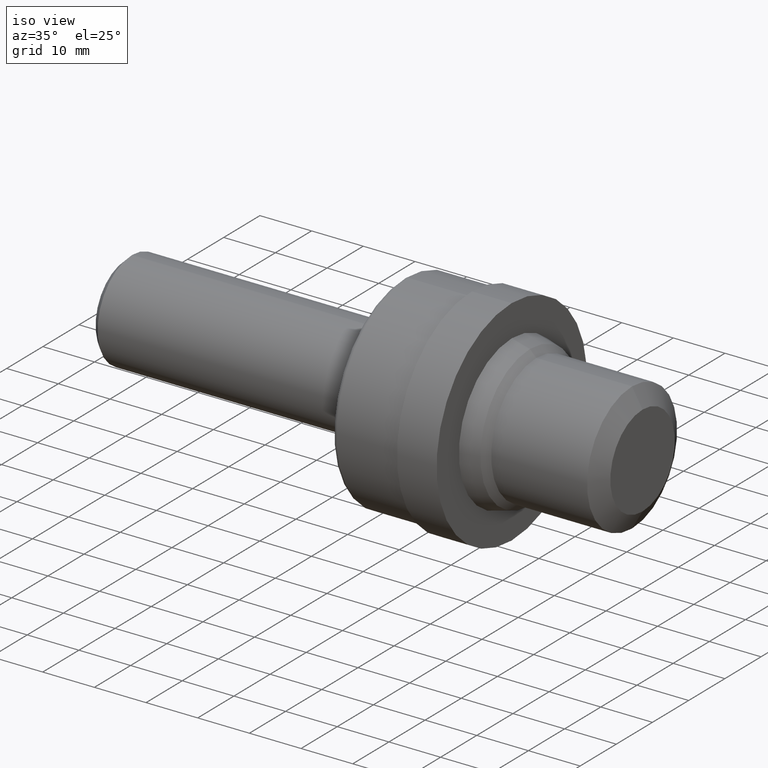
[diagram: clean part render]
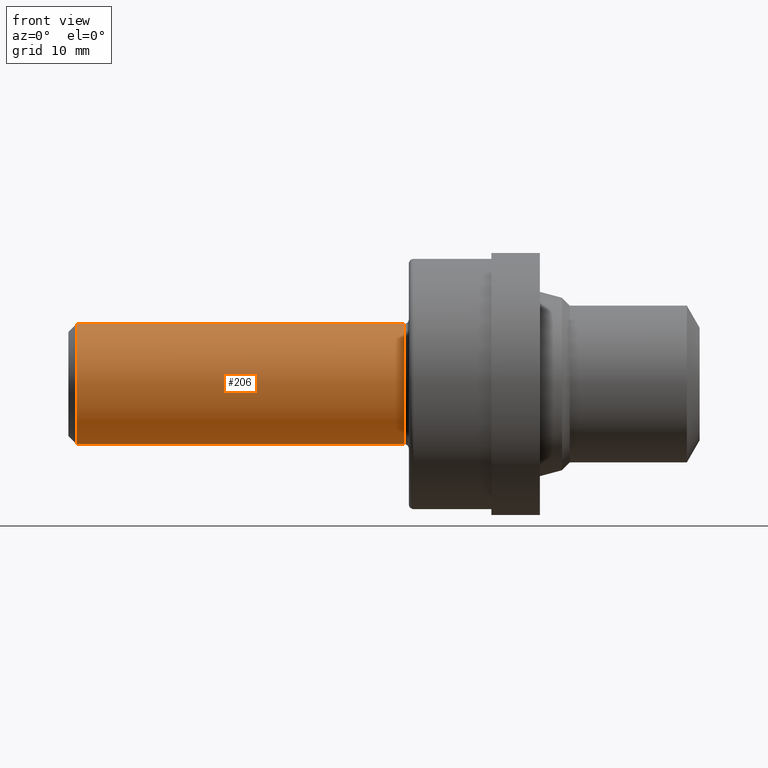
[diagram: tour spotlight — one face highlighted and labeled with its STEP entity id]
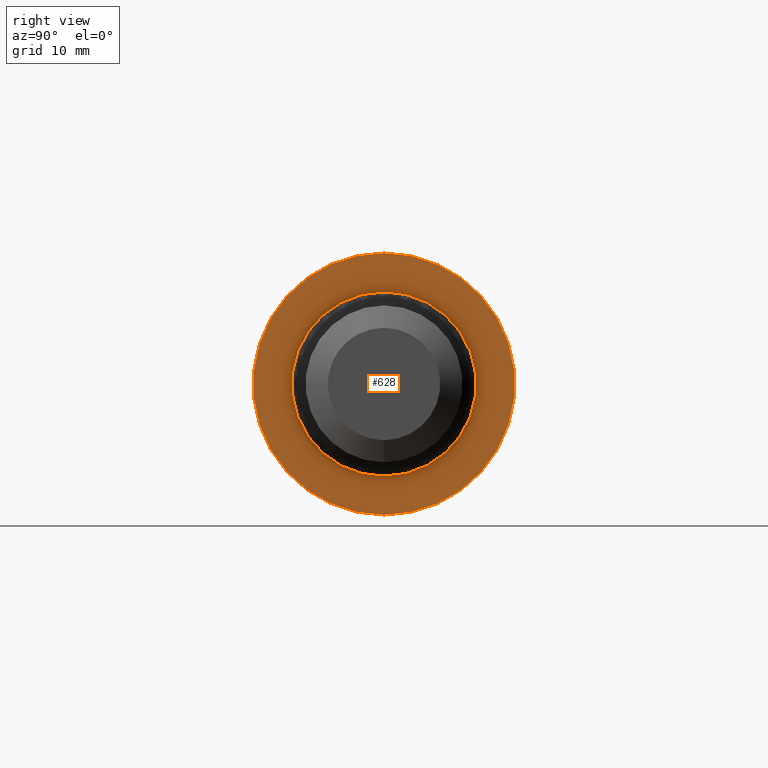
[diagram: tour spotlight — one face highlighted and labeled with its STEP entity id]
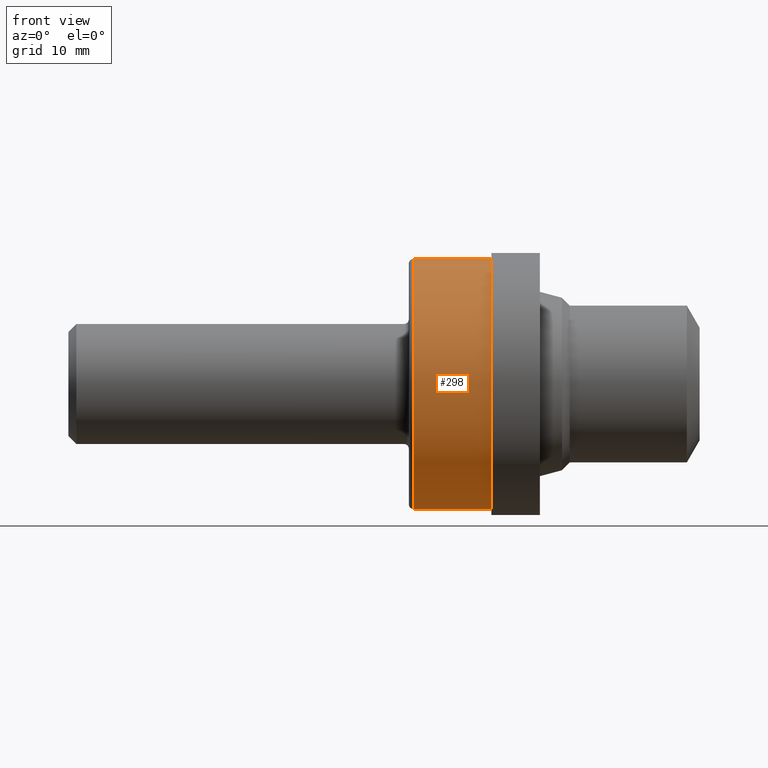
[diagram: tour spotlight — one face highlighted and labeled with its STEP entity id]
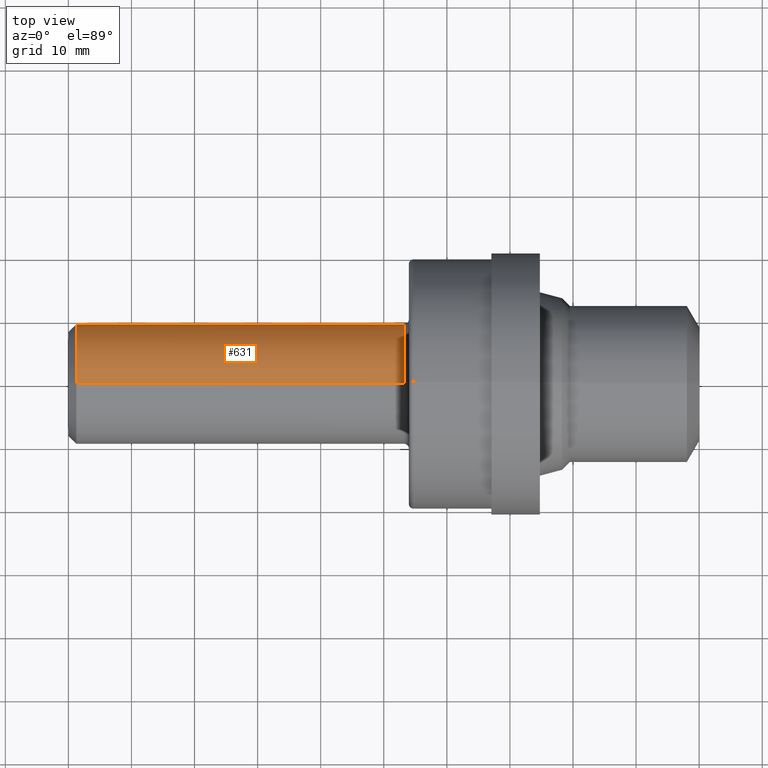
[diagram: tour spotlight — one face highlighted and labeled with its STEP entity id]
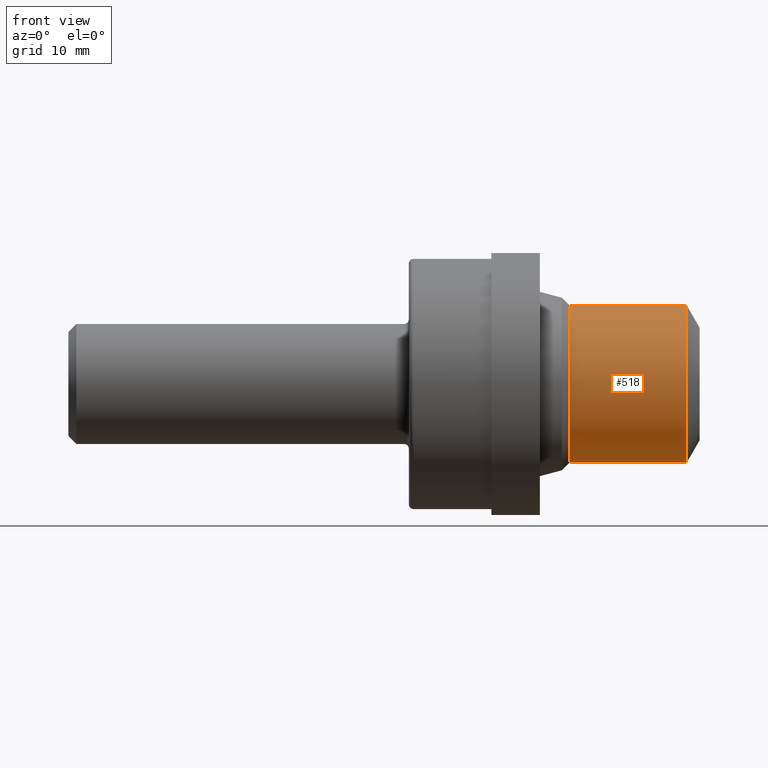
[diagram: tour spotlight — one face highlighted and labeled with its STEP entity id]
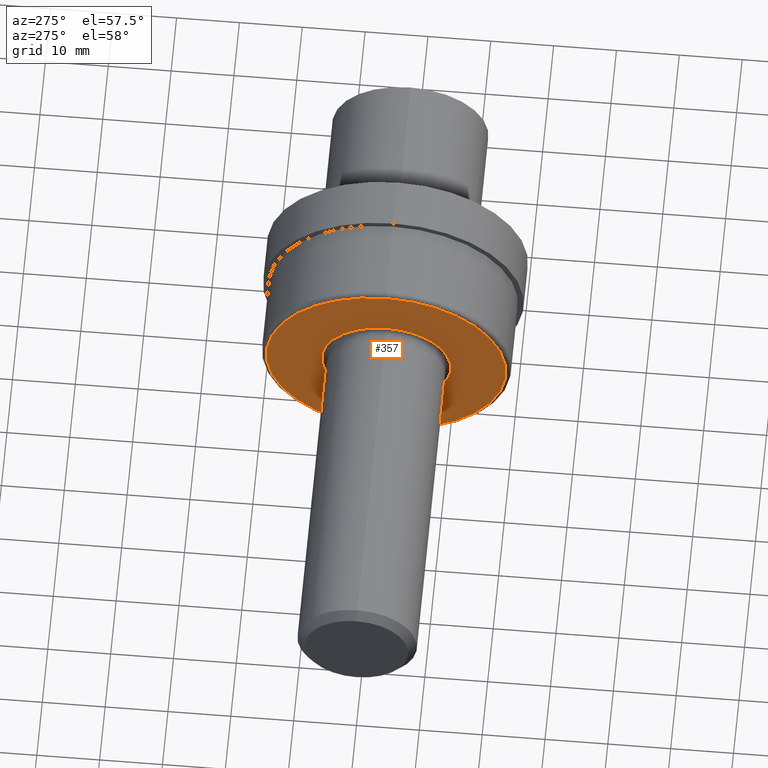
[diagram: tour spotlight — one face highlighted and labeled with its STEP entity id]
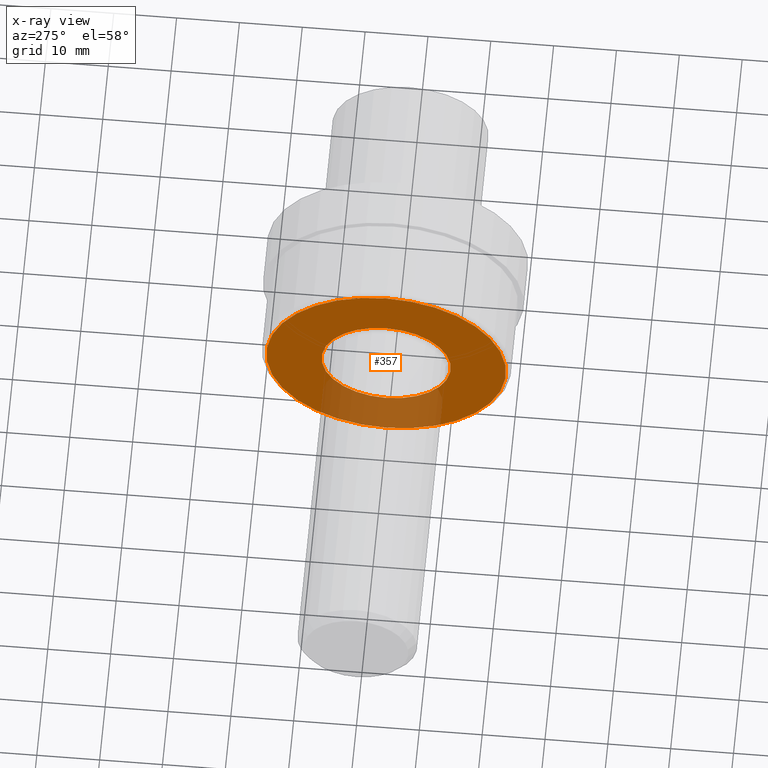
[diagram: x-ray of the same camera — body ghosted, this tour face saturated]
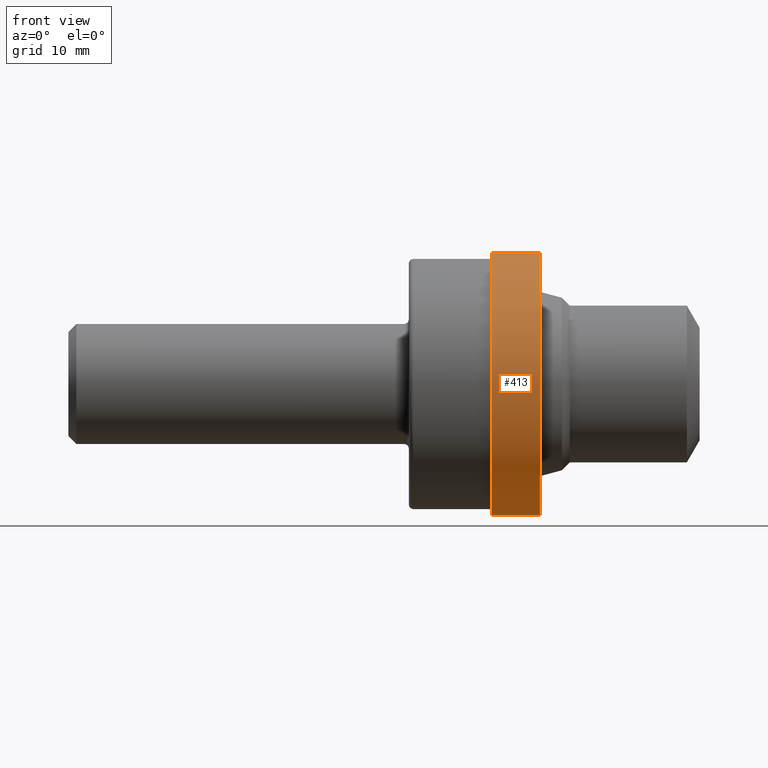
[diagram: tour spotlight — one face highlighted and labeled with its STEP entity id]
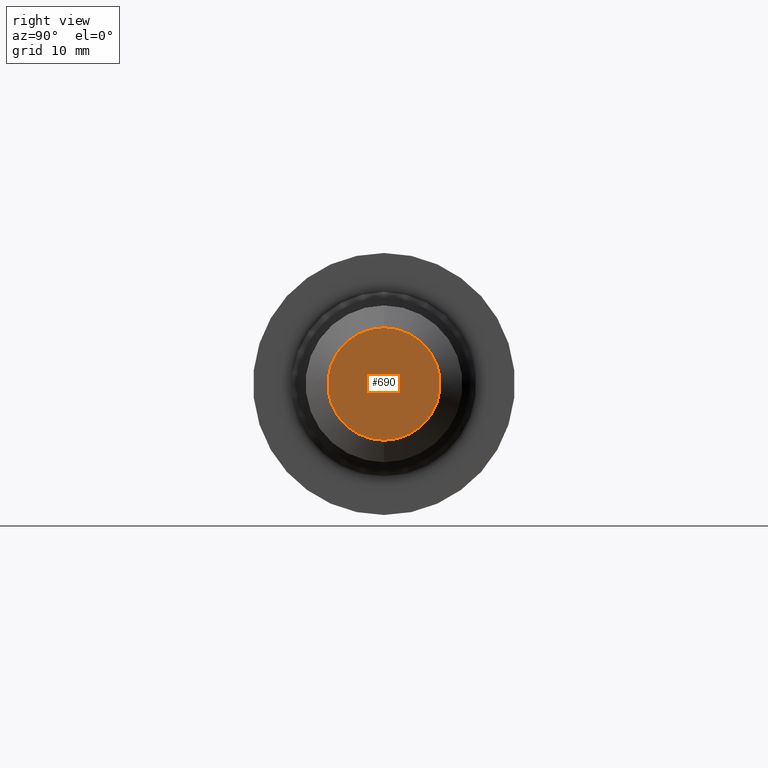
[diagram: tour spotlight — one face highlighted and labeled with its STEP entity id]
A machine part: a face-by-face anatomy tour. The part has 25 B-rep faces; the first image is the clean iso view, then the 8 largest visible faces are spotlighted one at a time (largest first), each with its STEP entity span.

Face 1 — front view, entity #206. In plain terms, the highlighted cylindrical surface (partial cylindrical patch) has radius 9.5212 mm, axis along (-1, -0, -0).
Definition (entity closure, byte-faithful):
#6 = ORIENTED_EDGE ( 'NONE', *, *, #584, .F. ) ;
#8 = DIRECTION ( 'NONE',  ( -1.000000000000000000, -0.0000000000000000000, -0.0000000000000000000 ) ) ;
#59 = CARTESIAN_POINT ( 'NONE',  ( 0.05000000000000000278, 0.0000000000000000000, -0.3748500000000000165 ) ) ;
#66 = AXIS2_PLACEMENT_3D ( 'NONE', #299, #682, #618 ) ;
#82 = CARTESIAN_POINT ( 'NONE',  ( 0.05000000000000000278, 0.0000000000000000000, 0.0000000000000000000 ) ) ;
#97 = VECTOR ( 'NONE', #521, 39.37007874015748143 ) ;
#101 = CARTESIAN_POINT ( 'NONE',  ( 2.094999999999999751, 0.0000000000000000000, 0.3748500000000004606 ) ) ;
#110 = DIRECTION ( 'NONE',  ( 0.0000000000000000000, 0.0000000000000000000, 1.000000000000000000 ) ) ;
#120 = VERTEX_POINT ( 'NONE', #59 ) ;
#174 = EDGE_CURVE ( 'NONE', #260, #120, #230, .T. ) ;
#182 = VERTEX_POINT ( 'NONE', #101 ) ;
#195 = CYLINDRICAL_SURFACE ( 'NONE', #66, 0.3748500000000002386 ) ;
#203 = CARTESIAN_POINT ( 'NONE',  ( 0.0000000000000000000, 4.590588526603856213E-17, -0.3748500000000002386 ) ) ;
#206 = ADVANCED_FACE ( 'NONE', ( #344 ), #195, .T. ) ;
#219 = LINE ( 'NONE', #389, #233 ) ;
#228 = CARTESIAN_POINT ( 'NONE',  ( 0.05000000000000000278, 4.590588526603853748E-17, 0.3748500000000000165 ) ) ;
#230 = LINE ( 'NONE', #203, #97 ) ;
#233 = VECTOR ( 'NONE', #234, 39.37007874015748143 ) ;
#234 = DIRECTION ( 'NONE',  ( -1.000000000000000000, -0.0000000000000000000, -0.0000000000000000000 ) ) ;
#254 = EDGE_CURVE ( 'NONE', #260, #182, #582, .T. ) ;
#260 = VERTEX_POINT ( 'NONE', #581 ) ;
#271 = AXIS2_PLACEMENT_3D ( 'NONE', #362, #8, #110 ) ;
#273 = ORIENTED_EDGE ( 'NONE', *, *, #360, .T. ) ;
#280 = DIRECTION ( 'NONE',  ( -1.000000000000000000, -0.0000000000000000000, -0.0000000000000000000 ) ) ;
#284 = DIRECTION ( 'NONE',  ( 0.0000000000000000000, 0.0000000000000000000, 1.000000000000000000 ) ) ;
#299 = CARTESIAN_POINT ( 'NONE',  ( 0.0000000000000000000, 0.0000000000000000000, 0.0000000000000000000 ) ) ;
#344 = FACE_OUTER_BOUND ( 'NONE', #458, .T. ) ;
#360 = EDGE_CURVE ( 'NONE', #182, #481, #219, .T. ) ;
#362 = CARTESIAN_POINT ( 'NONE',  ( 2.094999999999999751, 0.0000000000000000000, 0.0000000000000000000 ) ) ;
#371 = ORIENTED_EDGE ( 'NONE', *, *, #174, .F. ) ;
#389 = CARTESIAN_POINT ( 'NONE',  ( 0.0000000000000000000, 0.0000000000000000000, 0.3748500000000002386 ) ) ;
#458 = EDGE_LOOP ( 'NONE', ( #371, #665, #273, #6 ) ) ;
#462 = AXIS2_PLACEMENT_3D ( 'NONE', #82, #280, #284 ) ;
#481 = VERTEX_POINT ( 'NONE', #228 ) ;
#521 = DIRECTION ( 'NONE',  ( -1.000000000000000000, -0.0000000000000000000, -0.0000000000000000000 ) ) ;
#563 = CIRCLE ( 'NONE', #462, 0.3748500000000000165 ) ;
#581 = CARTESIAN_POINT ( 'NONE',  ( 2.094999999999999751, 4.590588526603858678E-17, -0.3748500000000003496 ) ) ;
#582 = CIRCLE ( 'NONE', #271, 0.3748500000000004606 ) ;
#584 = EDGE_CURVE ( 'NONE', #120, #481, #563, .T. ) ;
#618 = DIRECTION ( 'NONE',  ( 0.0000000000000000000, 0.0000000000000000000, 1.000000000000000000 ) ) ;
#665 = ORIENTED_EDGE ( 'NONE', *, *, #254, .T. ) ;
#682 = DIRECTION ( 'NONE',  ( -1.000000000000000000, -0.0000000000000000000, -0.0000000000000000000 ) ) ;

Face 2 — right view, entity #628. In plain terms, the highlighted planar face has unit normal (-1, 0, -0).
Definition (entity closure, byte-faithful):
#21 = EDGE_LOOP ( 'NONE', ( #46, #526 ) ) ;
#27 = ORIENTED_EDGE ( 'NONE', *, *, #505, .F. ) ;
#46 = ORIENTED_EDGE ( 'NONE', *, *, #573, .T. ) ;
#49 = CIRCLE ( 'NONE', #258, 0.5752500000000000391 ) ;
#50 = CARTESIAN_POINT ( 'NONE',  ( 2.942999999999999616, 0.0000000000000000000, 0.8175000000000000044 ) ) ;
#69 = ORIENTED_EDGE ( 'NONE', *, *, #361, .F. ) ;
#85 = CARTESIAN_POINT ( 'NONE',  ( 2.942999999999999616, 0.0000000000000000000, 0.0000000000000000000 ) ) ;
#123 = DIRECTION ( 'NONE',  ( -1.000000000000000000, -0.0000000000000000000, -0.0000000000000000000 ) ) ;
#130 = FACE_BOUND ( 'NONE', #21, .T. ) ;
#131 = VERTEX_POINT ( 'NONE', #692 ) ;
#145 = DIRECTION ( 'NONE',  ( -1.000000000000000000, -0.0000000000000000000, -0.0000000000000000000 ) ) ;
#146 = DIRECTION ( 'NONE',  ( -0.0000000000000000000, 0.0000000000000000000, 1.000000000000000000 ) ) ;
#150 = DIRECTION ( 'NONE',  ( -1.000000000000000000, 0.0000000000000000000, -0.0000000000000000000 ) ) ;
#154 = CARTESIAN_POINT ( 'NONE',  ( 2.942999999999999616, 0.8175000000000000044, 0.0000000000000000000 ) ) ;
#188 = EDGE_CURVE ( 'NONE', #131, #231, #216, .T. ) ;
#204 = EDGE_LOOP ( 'NONE', ( #69, #27 ) ) ;
#216 = CIRCLE ( 'NONE', #649, 0.5752500000000000391 ) ;
#220 = VERTEX_POINT ( 'NONE', #50 ) ;
#221 = AXIS2_PLACEMENT_3D ( 'NONE', #541, #123, #434 ) ;
#231 = VERTEX_POINT ( 'NONE', #349 ) ;
#237 = CARTESIAN_POINT ( 'NONE',  ( 2.942999999999999616, 0.0000000000000000000, 0.0000000000000000000 ) ) ;
#258 = AXIS2_PLACEMENT_3D ( 'NONE', #85, #375, #482 ) ;
#262 = VERTEX_POINT ( 'NONE', #307 ) ;
#279 = FACE_OUTER_BOUND ( 'NONE', #204, .T. ) ;
#307 = CARTESIAN_POINT ( 'NONE',  ( 2.942999999999999616, 1.001148758302961187E-16, -0.8175000000000000044 ) ) ;
#340 = CIRCLE ( 'NONE', #221, 0.8175000000000000044 ) ;
#346 = CIRCLE ( 'NONE', #373, 0.8175000000000000044 ) ;
#349 = CARTESIAN_POINT ( 'NONE',  ( 2.942999999999999616, 0.0000000000000000000, 0.5752500000000000391 ) ) ;
#361 = EDGE_CURVE ( 'NONE', #220, #262, #346, .T. ) ;
#373 = AXIS2_PLACEMENT_3D ( 'NONE', #237, #549, #542 ) ;
#375 = DIRECTION ( 'NONE',  ( -1.000000000000000000, -0.0000000000000000000, -0.0000000000000000000 ) ) ;
#434 = DIRECTION ( 'NONE',  ( 0.0000000000000000000, 0.0000000000000000000, 1.000000000000000000 ) ) ;
#482 = DIRECTION ( 'NONE',  ( 0.0000000000000000000, 0.0000000000000000000, 1.000000000000000000 ) ) ;
#505 = EDGE_CURVE ( 'NONE', #262, #220, #340, .T. ) ;
#519 = DIRECTION ( 'NONE',  ( 0.0000000000000000000, 0.0000000000000000000, 1.000000000000000000 ) ) ;
#526 = ORIENTED_EDGE ( 'NONE', *, *, #188, .T. ) ;
#541 = CARTESIAN_POINT ( 'NONE',  ( 2.942999999999999616, 0.0000000000000000000, 0.0000000000000000000 ) ) ;
#542 = DIRECTION ( 'NONE',  ( 0.0000000000000000000, 0.0000000000000000000, 1.000000000000000000 ) ) ;
#549 = DIRECTION ( 'NONE',  ( -1.000000000000000000, -0.0000000000000000000, -0.0000000000000000000 ) ) ;
#569 = CARTESIAN_POINT ( 'NONE',  ( 2.942999999999999616, 0.0000000000000000000, 0.0000000000000000000 ) ) ;
#573 = EDGE_CURVE ( 'NONE', #231, #131, #49, .T. ) ;
#583 = PLANE ( 'NONE',  #596 ) ;
#596 = AXIS2_PLACEMENT_3D ( 'NONE', #154, #150, #146 ) ;
#628 = ADVANCED_FACE ( 'NONE', ( #279, #130 ), #583, .F. ) ;
#649 = AXIS2_PLACEMENT_3D ( 'NONE', #569, #145, #519 ) ;
#692 = CARTESIAN_POINT ( 'NONE',  ( 2.942999999999999616, 7.044780712095150057E-17, -0.5752500000000000391 ) ) ;

Face 3 — front view, entity #298. In plain terms, the highlighted cylindrical surface (partial cylindrical patch) has radius 19.8374 mm, axis along (-1, -0, -0).
Definition (entity closure, byte-faithful):
#3 = DIRECTION ( 'NONE',  ( 0.0000000000000000000, 0.0000000000000000000, 1.000000000000000000 ) ) ;
#29 = AXIS2_PLACEMENT_3D ( 'NONE', #305, #524, #3 ) ;
#40 = CARTESIAN_POINT ( 'NONE',  ( 2.154999999999999805, 0.0000000000000000000, 0.7810000000000001386 ) ) ;
#56 = CARTESIAN_POINT ( 'NONE',  ( 2.154999999999999805, 9.564491501340829556E-17, -0.7810000000000001386 ) ) ;
#61 = DIRECTION ( 'NONE',  ( -1.000000000000000000, -0.0000000000000000000, -0.0000000000000000000 ) ) ;
#62 = VERTEX_POINT ( 'NONE', #87 ) ;
#63 = VERTEX_POINT ( 'NONE', #40 ) ;
#87 = CARTESIAN_POINT ( 'NONE',  ( 2.640000000000000124, 0.0000000000000000000, 0.7810000000000001386 ) ) ;
#103 = DIRECTION ( 'NONE',  ( -1.000000000000000000, -0.0000000000000000000, -0.0000000000000000000 ) ) ;
#106 = DIRECTION ( 'NONE',  ( -1.000000000000000000, -0.0000000000000000000, -0.0000000000000000000 ) ) ;
#134 = EDGE_LOOP ( 'NONE', ( #678, #168, #202, #527 ) ) ;
#168 = ORIENTED_EDGE ( 'NONE', *, *, #654, .T. ) ;
#171 = CIRCLE ( 'NONE', #372, 0.7810000000000001386 ) ;
#179 = LINE ( 'NONE', #679, #589 ) ;
#202 = ORIENTED_EDGE ( 'NONE', *, *, #647, .T. ) ;
#278 = FACE_OUTER_BOUND ( 'NONE', #134, .T. ) ;
#292 = EDGE_CURVE ( 'NONE', #653, #63, #171, .T. ) ;
#298 = ADVANCED_FACE ( 'NONE', ( #278 ), #544, .T. ) ;
#300 = CARTESIAN_POINT ( 'NONE',  ( 0.0000000000000000000, 0.0000000000000000000, 0.7810000000000001386 ) ) ;
#305 = CARTESIAN_POINT ( 'NONE',  ( 0.0000000000000000000, 0.0000000000000000000, 0.0000000000000000000 ) ) ;
#314 = VECTOR ( 'NONE', #106, 39.37007874015748143 ) ;
#334 = LINE ( 'NONE', #300, #314 ) ;
#358 = CARTESIAN_POINT ( 'NONE',  ( 2.154999999999999805, 0.0000000000000000000, 0.0000000000000000000 ) ) ;
#372 = AXIS2_PLACEMENT_3D ( 'NONE', #358, #61, #415 ) ;
#379 = VERTEX_POINT ( 'NONE', #435 ) ;
#415 = DIRECTION ( 'NONE',  ( 0.0000000000000000000, 0.0000000000000000000, 1.000000000000000000 ) ) ;
#435 = CARTESIAN_POINT ( 'NONE',  ( 2.640000000000000124, 9.564491501340829556E-17, -0.7810000000000001386 ) ) ;
#524 = DIRECTION ( 'NONE',  ( -1.000000000000000000, -0.0000000000000000000, -0.0000000000000000000 ) ) ;
#527 = ORIENTED_EDGE ( 'NONE', *, *, #292, .F. ) ;
#544 = CYLINDRICAL_SURFACE ( 'NONE', #29, 0.7810000000000001386 ) ;
#589 = VECTOR ( 'NONE', #103, 39.37007874015748143 ) ;
#602 = CIRCLE ( 'NONE', #637, 0.7810000000000001386 ) ;
#636 = DIRECTION ( 'NONE',  ( 0.0000000000000000000, 0.0000000000000000000, 1.000000000000000000 ) ) ;
#637 = AXIS2_PLACEMENT_3D ( 'NONE', #674, #669, #636 ) ;
#647 = EDGE_CURVE ( 'NONE', #62, #63, #334, .T. ) ;
#653 = VERTEX_POINT ( 'NONE', #56 ) ;
#654 = EDGE_CURVE ( 'NONE', #379, #62, #602, .T. ) ;
#667 = EDGE_CURVE ( 'NONE', #379, #653, #179, .T. ) ;
#669 = DIRECTION ( 'NONE',  ( -1.000000000000000000, -0.0000000000000000000, -0.0000000000000000000 ) ) ;
#674 = CARTESIAN_POINT ( 'NONE',  ( 2.640000000000000124, 0.0000000000000000000, 0.0000000000000000000 ) ) ;
#678 = ORIENTED_EDGE ( 'NONE', *, *, #667, .F. ) ;
#679 = CARTESIAN_POINT ( 'NONE',  ( 0.0000000000000000000, 9.564491501340829556E-17, -0.7810000000000001386 ) ) ;

Face 4 — top view, entity #631. In plain terms, the highlighted cylindrical surface (partial cylindrical patch) has radius 9.5212 mm, axis along (-1, -0, -0).
Definition (entity closure, byte-faithful):
#15 = CIRCLE ( 'NONE', #610, 0.3748500000000000165 ) ;
#39 = CARTESIAN_POINT ( 'NONE',  ( 2.094999999999999751, 0.0000000000000000000, 0.0000000000000000000 ) ) ;
#59 = CARTESIAN_POINT ( 'NONE',  ( 0.05000000000000000278, 0.0000000000000000000, -0.3748500000000000165 ) ) ;
#72 = EDGE_CURVE ( 'NONE', #182, #260, #124, .T. ) ;
#97 = VECTOR ( 'NONE', #521, 39.37007874015748143 ) ;
#101 = CARTESIAN_POINT ( 'NONE',  ( 2.094999999999999751, 0.0000000000000000000, 0.3748500000000004606 ) ) ;
#109 = ORIENTED_EDGE ( 'NONE', *, *, #72, .T. ) ;
#120 = VERTEX_POINT ( 'NONE', #59 ) ;
#124 = CIRCLE ( 'NONE', #471, 0.3748500000000004606 ) ;
#133 = DIRECTION ( 'NONE',  ( -1.000000000000000000, -0.0000000000000000000, -0.0000000000000000000 ) ) ;
#142 = CARTESIAN_POINT ( 'NONE',  ( 0.0000000000000000000, 0.0000000000000000000, 0.0000000000000000000 ) ) ;
#174 = EDGE_CURVE ( 'NONE', #260, #120, #230, .T. ) ;
#182 = VERTEX_POINT ( 'NONE', #101 ) ;
#203 = CARTESIAN_POINT ( 'NONE',  ( 0.0000000000000000000, 4.590588526603856213E-17, -0.3748500000000002386 ) ) ;
#205 = DIRECTION ( 'NONE',  ( 0.0000000000000000000, 0.0000000000000000000, 1.000000000000000000 ) ) ;
#217 = DIRECTION ( 'NONE',  ( 0.0000000000000000000, 0.0000000000000000000, 1.000000000000000000 ) ) ;
#219 = LINE ( 'NONE', #389, #233 ) ;
#228 = CARTESIAN_POINT ( 'NONE',  ( 0.05000000000000000278, 4.590588526603853748E-17, 0.3748500000000000165 ) ) ;
#230 = LINE ( 'NONE', #203, #97 ) ;
#233 = VECTOR ( 'NONE', #234, 39.37007874015748143 ) ;
#234 = DIRECTION ( 'NONE',  ( -1.000000000000000000, -0.0000000000000000000, -0.0000000000000000000 ) ) ;
#259 = DIRECTION ( 'NONE',  ( -1.000000000000000000, -0.0000000000000000000, -0.0000000000000000000 ) ) ;
#260 = VERTEX_POINT ( 'NONE', #581 ) ;
#336 = DIRECTION ( 'NONE',  ( -1.000000000000000000, -0.0000000000000000000, -0.0000000000000000000 ) ) ;
#338 = CARTESIAN_POINT ( 'NONE',  ( 0.05000000000000000278, 0.0000000000000000000, 0.0000000000000000000 ) ) ;
#360 = EDGE_CURVE ( 'NONE', #182, #481, #219, .T. ) ;
#389 = CARTESIAN_POINT ( 'NONE',  ( 0.0000000000000000000, 0.0000000000000000000, 0.3748500000000002386 ) ) ;
#457 = CYLINDRICAL_SURFACE ( 'NONE', #675, 0.3748500000000002386 ) ;
#464 = EDGE_LOOP ( 'NONE', ( #109, #516, #609, #603 ) ) ;
#471 = AXIS2_PLACEMENT_3D ( 'NONE', #39, #336, #663 ) ;
#477 = FACE_OUTER_BOUND ( 'NONE', #464, .T. ) ;
#481 = VERTEX_POINT ( 'NONE', #228 ) ;
#516 = ORIENTED_EDGE ( 'NONE', *, *, #174, .T. ) ;
#521 = DIRECTION ( 'NONE',  ( -1.000000000000000000, -0.0000000000000000000, -0.0000000000000000000 ) ) ;
#581 = CARTESIAN_POINT ( 'NONE',  ( 2.094999999999999751, 4.590588526603858678E-17, -0.3748500000000003496 ) ) ;
#603 = ORIENTED_EDGE ( 'NONE', *, *, #360, .F. ) ;
#609 = ORIENTED_EDGE ( 'NONE', *, *, #626, .F. ) ;
#610 = AXIS2_PLACEMENT_3D ( 'NONE', #338, #259, #205 ) ;
#626 = EDGE_CURVE ( 'NONE', #481, #120, #15, .T. ) ;
#631 = ADVANCED_FACE ( 'NONE', ( #477 ), #457, .T. ) ;
#663 = DIRECTION ( 'NONE',  ( 0.0000000000000000000, 0.0000000000000000000, 1.000000000000000000 ) ) ;
#675 = AXIS2_PLACEMENT_3D ( 'NONE', #142, #133, #217 ) ;

Face 5 — front view, entity #518. In plain terms, the highlighted cylindrical surface (partial cylindrical patch) has radius 12.4333 mm, axis along (-1, -0, -0).
Definition (entity closure, byte-faithful):
#12 = EDGE_CURVE ( 'NONE', #632, #578, #557, .T. ) ;
#13 = CARTESIAN_POINT ( 'NONE',  ( 3.859999999999999876, 0.0000000000000000000, 0.0000000000000000000 ) ) ;
#23 = EDGE_LOOP ( 'NONE', ( #117, #670, #608, #580 ) ) ;
#31 = LINE ( 'NONE', #268, #531 ) ;
#67 = DIRECTION ( 'NONE',  ( 0.0000000000000000000, 0.0000000000000000000, 1.000000000000000000 ) ) ;
#117 = ORIENTED_EDGE ( 'NONE', *, *, #322, .F. ) ;
#118 = AXIS2_PLACEMENT_3D ( 'NONE', #593, #321, #388 ) ;
#121 = CARTESIAN_POINT ( 'NONE',  ( 3.129773011444504593, 0.0000000000000000000, 0.4894999999999999907 ) ) ;
#135 = DIRECTION ( 'NONE',  ( -1.000000000000000000, -0.0000000000000000000, -0.0000000000000000000 ) ) ;
#138 = AXIS2_PLACEMENT_3D ( 'NONE', #13, #528, #67 ) ;
#164 = DIRECTION ( 'NONE',  ( -1.000000000000000000, -0.0000000000000000000, -0.0000000000000000000 ) ) ;
#244 = CARTESIAN_POINT ( 'NONE',  ( 0.0000000000000000000, 0.0000000000000000000, 0.4894999999999999907 ) ) ;
#268 = CARTESIAN_POINT ( 'NONE',  ( 0.0000000000000000000, 5.994646081826293618E-17, -0.4894999999999999907 ) ) ;
#310 = EDGE_CURVE ( 'NONE', #395, #632, #402, .T. ) ;
#313 = CARTESIAN_POINT ( 'NONE',  ( 3.859999999999999876, 0.0000000000000000000, 0.4894999999999999907 ) ) ;
#317 = AXIS2_PLACEMENT_3D ( 'NONE', #598, #659, #484 ) ;
#321 = DIRECTION ( 'NONE',  ( -1.000000000000000000, -0.0000000000000000000, -0.0000000000000000000 ) ) ;
#322 = EDGE_CURVE ( 'NONE', #395, #539, #31, .T. ) ;
#359 = CIRCLE ( 'NONE', #118, 0.4894999999999999907 ) ;
#388 = DIRECTION ( 'NONE',  ( 0.0000000000000000000, 0.0000000000000000000, 1.000000000000000000 ) ) ;
#395 = VERTEX_POINT ( 'NONE', #485 ) ;
#402 = CIRCLE ( 'NONE', #138, 0.4894999999999999907 ) ;
#417 = VECTOR ( 'NONE', #135, 39.37007874015748143 ) ;
#436 = CYLINDRICAL_SURFACE ( 'NONE', #317, 0.4894999999999999907 ) ;
#444 = CARTESIAN_POINT ( 'NONE',  ( 3.129773011444504593, 6.293294643577743942E-17, -0.4894999999999999907 ) ) ;
#450 = FACE_OUTER_BOUND ( 'NONE', #23, .T. ) ;
#466 = EDGE_CURVE ( 'NONE', #539, #578, #359, .T. ) ;
#484 = DIRECTION ( 'NONE',  ( 0.0000000000000000000, 0.0000000000000000000, 1.000000000000000000 ) ) ;
#485 = CARTESIAN_POINT ( 'NONE',  ( 3.859999999999999876, 5.994646081826293618E-17, -0.4894999999999999907 ) ) ;
#518 = ADVANCED_FACE ( 'NONE', ( #450 ), #436, .T. ) ;
#528 = DIRECTION ( 'NONE',  ( -1.000000000000000000, -0.0000000000000000000, -0.0000000000000000000 ) ) ;
#531 = VECTOR ( 'NONE', #164, 39.37007874015748143 ) ;
#539 = VERTEX_POINT ( 'NONE', #444 ) ;
#557 = LINE ( 'NONE', #244, #417 ) ;
#578 = VERTEX_POINT ( 'NONE', #121 ) ;
#580 = ORIENTED_EDGE ( 'NONE', *, *, #466, .F. ) ;
#593 = CARTESIAN_POINT ( 'NONE',  ( 3.129773011444504593, 0.0000000000000000000, 0.0000000000000000000 ) ) ;
#598 = CARTESIAN_POINT ( 'NONE',  ( 0.0000000000000000000, 0.0000000000000000000, 0.0000000000000000000 ) ) ;
#608 = ORIENTED_EDGE ( 'NONE', *, *, #12, .T. ) ;
#632 = VERTEX_POINT ( 'NONE', #313 ) ;
#659 = DIRECTION ( 'NONE',  ( -1.000000000000000000, -0.0000000000000000000, -0.0000000000000000000 ) ) ;
#670 = ORIENTED_EDGE ( 'NONE', *, *, #310, .T. ) ;

Face 6 — auxiliary view, entity #357. An x-ray twin of the same camera follows (body ghosted, this face saturated) — the face is partly hidden behind the body. In plain terms, the highlighted planar face has unit normal (1, 0, 0).
Definition (entity closure, byte-faithful):
#1 = EDGE_CURVE ( 'NONE', #489, #303, #291, .T. ) ;
#36 = PLANE ( 'NONE',  #409 ) ;
#60 = EDGE_CURVE ( 'NONE', #303, #489, #400, .T. ) ;
#68 = CIRCLE ( 'NONE', #559, 0.7510000000000001119 ) ;
#98 = CARTESIAN_POINT ( 'NONE',  ( 2.125000000000000000, 0.0000000000000000000, 0.7510000000000001119 ) ) ;
#169 = CARTESIAN_POINT ( 'NONE',  ( 2.125000000000000000, 9.380794481468725749E-17, -0.7510000000000001119 ) ) ;
#177 = CARTESIAN_POINT ( 'NONE',  ( 2.125000000000000000, 0.0000000000000000000, 0.4048500000000005428 ) ) ;
#178 = DIRECTION ( 'NONE',  ( 1.000000000000000000, 0.0000000000000000000, 0.0000000000000000000 ) ) ;
#181 = DIRECTION ( 'NONE',  ( 0.0000000000000000000, 0.0000000000000000000, 1.000000000000000000 ) ) ;
#187 = DIRECTION ( 'NONE',  ( 0.0000000000000000000, 0.0000000000000000000, 1.000000000000000000 ) ) ;
#209 = CARTESIAN_POINT ( 'NONE',  ( 2.125000000000000000, 4.957982566348065676E-17, -0.4048500000000005428 ) ) ;
#211 = AXIS2_PLACEMENT_3D ( 'NONE', #620, #248, #614 ) ;
#214 = ORIENTED_EDGE ( 'NONE', *, *, #60, .F. ) ;
#225 = ORIENTED_EDGE ( 'NONE', *, *, #1, .F. ) ;
#238 = VERTEX_POINT ( 'NONE', #98 ) ;
#239 = CARTESIAN_POINT ( 'NONE',  ( 2.125000000000000000, 0.0000000000000000000, 0.0000000000000000000 ) ) ;
#248 = DIRECTION ( 'NONE',  ( -1.000000000000000000, -0.0000000000000000000, -0.0000000000000000000 ) ) ;
#290 = CARTESIAN_POINT ( 'NONE',  ( 2.125000000000000000, 0.0000000000000000000, 0.0000000000000000000 ) ) ;
#291 = CIRCLE ( 'NONE', #507, 0.4048500000000005428 ) ;
#303 = VERTEX_POINT ( 'NONE', #209 ) ;
#318 = ORIENTED_EDGE ( 'NONE', *, *, #323, .T. ) ;
#323 = EDGE_CURVE ( 'NONE', #579, #238, #680, .T. ) ;
#324 = DIRECTION ( 'NONE',  ( 0.0000000000000000000, 0.0000000000000000000, -1.000000000000000000 ) ) ;
#357 = ADVANCED_FACE ( 'NONE', ( #492, #369 ), #36, .F. ) ;
#365 = AXIS2_PLACEMENT_3D ( 'NONE', #239, #551, #181 ) ;
#369 = FACE_OUTER_BOUND ( 'NONE', #473, .T. ) ;
#378 = CARTESIAN_POINT ( 'NONE',  ( 2.125000000000000000, 0.7510000000000001119, 0.0000000000000000000 ) ) ;
#400 = CIRCLE ( 'NONE', #365, 0.4048500000000005428 ) ;
#409 = AXIS2_PLACEMENT_3D ( 'NONE', #378, #178, #324 ) ;
#473 = EDGE_LOOP ( 'NONE', ( #657, #318 ) ) ;
#489 = VERTEX_POINT ( 'NONE', #177 ) ;
#492 = FACE_BOUND ( 'NONE', #604, .T. ) ;
#507 = AXIS2_PLACEMENT_3D ( 'NONE', #290, #671, #187 ) ;
#551 = DIRECTION ( 'NONE',  ( -1.000000000000000000, -0.0000000000000000000, -0.0000000000000000000 ) ) ;
#559 = AXIS2_PLACEMENT_3D ( 'NONE', #612, #611, #586 ) ;
#579 = VERTEX_POINT ( 'NONE', #169 ) ;
#586 = DIRECTION ( 'NONE',  ( 0.0000000000000000000, 0.0000000000000000000, 1.000000000000000000 ) ) ;
#604 = EDGE_LOOP ( 'NONE', ( #225, #214 ) ) ;
#611 = DIRECTION ( 'NONE',  ( -1.000000000000000000, -0.0000000000000000000, -0.0000000000000000000 ) ) ;
#612 = CARTESIAN_POINT ( 'NONE',  ( 2.125000000000000000, 0.0000000000000000000, 0.0000000000000000000 ) ) ;
#614 = DIRECTION ( 'NONE',  ( 0.0000000000000000000, 0.0000000000000000000, 1.000000000000000000 ) ) ;
#620 = CARTESIAN_POINT ( 'NONE',  ( 2.125000000000000000, 0.0000000000000000000, 0.0000000000000000000 ) ) ;
#655 = EDGE_CURVE ( 'NONE', #238, #579, #68, .T. ) ;
#657 = ORIENTED_EDGE ( 'NONE', *, *, #655, .T. ) ;
#671 = DIRECTION ( 'NONE',  ( -1.000000000000000000, -0.0000000000000000000, -0.0000000000000000000 ) ) ;
#680 = CIRCLE ( 'NONE', #211, 0.7510000000000001119 ) ;

Face 7 — front view, entity #413. In plain terms, the highlighted cylindrical surface (partial cylindrical patch) has radius 20.7645 mm, axis along (-1, -0, -0).
Definition (entity closure, byte-faithful):
#4 = EDGE_LOOP ( 'NONE', ( #304, #479, #646, #320 ) ) ;
#30 = CARTESIAN_POINT ( 'NONE',  ( 2.640000000000000124, 0.0000000000000000000, 0.0000000000000000000 ) ) ;
#50 = CARTESIAN_POINT ( 'NONE',  ( 2.942999999999999616, 0.0000000000000000000, 0.8175000000000000044 ) ) ;
#91 = FACE_OUTER_BOUND ( 'NONE', #4, .T. ) ;
#105 = CARTESIAN_POINT ( 'NONE',  ( 0.0000000000000000000, 0.0000000000000000000, 0.8175000000000000044 ) ) ;
#112 = VECTOR ( 'NONE', #515, 39.37007874015748143 ) ;
#113 = EDGE_CURVE ( 'NONE', #220, #540, #656, .T. ) ;
#123 = DIRECTION ( 'NONE',  ( -1.000000000000000000, -0.0000000000000000000, -0.0000000000000000000 ) ) ;
#153 = VERTEX_POINT ( 'NONE', #350 ) ;
#176 = DIRECTION ( 'NONE',  ( -1.000000000000000000, -0.0000000000000000000, -0.0000000000000000000 ) ) ;
#220 = VERTEX_POINT ( 'NONE', #50 ) ;
#221 = AXIS2_PLACEMENT_3D ( 'NONE', #541, #123, #434 ) ;
#226 = DIRECTION ( 'NONE',  ( 0.0000000000000000000, 0.0000000000000000000, 1.000000000000000000 ) ) ;
#262 = VERTEX_POINT ( 'NONE', #307 ) ;
#304 = ORIENTED_EDGE ( 'NONE', *, *, #408, .F. ) ;
#307 = CARTESIAN_POINT ( 'NONE',  ( 2.942999999999999616, 1.001148758302961187E-16, -0.8175000000000000044 ) ) ;
#320 = ORIENTED_EDGE ( 'NONE', *, *, #615, .F. ) ;
#328 = VECTOR ( 'NONE', #480, 39.37007874015748143 ) ;
#331 = LINE ( 'NONE', #545, #328 ) ;
#340 = CIRCLE ( 'NONE', #221, 0.8175000000000000044 ) ;
#350 = CARTESIAN_POINT ( 'NONE',  ( 2.640000000000000124, 1.001148758302961187E-16, -0.8175000000000000044 ) ) ;
#408 = EDGE_CURVE ( 'NONE', #262, #153, #331, .T. ) ;
#413 = ADVANCED_FACE ( 'NONE', ( #91 ), #486, .T. ) ;
#434 = DIRECTION ( 'NONE',  ( 0.0000000000000000000, 0.0000000000000000000, 1.000000000000000000 ) ) ;
#440 = DIRECTION ( 'NONE',  ( -1.000000000000000000, -0.0000000000000000000, -0.0000000000000000000 ) ) ;
#479 = ORIENTED_EDGE ( 'NONE', *, *, #505, .T. ) ;
#480 = DIRECTION ( 'NONE',  ( -1.000000000000000000, -0.0000000000000000000, -0.0000000000000000000 ) ) ;
#486 = CYLINDRICAL_SURFACE ( 'NONE', #629, 0.8175000000000000044 ) ;
#488 = CARTESIAN_POINT ( 'NONE',  ( 2.640000000000000124, 0.0000000000000000000, 0.8175000000000000044 ) ) ;
#505 = EDGE_CURVE ( 'NONE', #262, #220, #340, .T. ) ;
#515 = DIRECTION ( 'NONE',  ( -1.000000000000000000, -0.0000000000000000000, -0.0000000000000000000 ) ) ;
#538 = AXIS2_PLACEMENT_3D ( 'NONE', #30, #176, #651 ) ;
#540 = VERTEX_POINT ( 'NONE', #488 ) ;
#541 = CARTESIAN_POINT ( 'NONE',  ( 2.942999999999999616, 0.0000000000000000000, 0.0000000000000000000 ) ) ;
#545 = CARTESIAN_POINT ( 'NONE',  ( 0.0000000000000000000, 1.001148758302961187E-16, -0.8175000000000000044 ) ) ;
#546 = CIRCLE ( 'NONE', #538, 0.8175000000000000044 ) ;
#601 = CARTESIAN_POINT ( 'NONE',  ( 0.0000000000000000000, 0.0000000000000000000, 0.0000000000000000000 ) ) ;
#615 = EDGE_CURVE ( 'NONE', #153, #540, #546, .T. ) ;
#629 = AXIS2_PLACEMENT_3D ( 'NONE', #601, #440, #226 ) ;
#646 = ORIENTED_EDGE ( 'NONE', *, *, #113, .T. ) ;
#651 = DIRECTION ( 'NONE',  ( 0.0000000000000000000, 0.0000000000000000000, 1.000000000000000000 ) ) ;
#656 = LINE ( 'NONE', #105, #112 ) ;

Face 8 — right view, entity #690. In plain terms, the highlighted planar face has unit normal (-1, 0, -0).
Definition (entity closure, byte-faithful):
#19 = DIRECTION ( 'NONE',  ( 0.0000000000000000000, 0.0000000000000000000, 1.000000000000000000 ) ) ;
#54 = CARTESIAN_POINT ( 'NONE',  ( 3.939999999999999947, 0.0000000000000000000, 0.3509359353944886961 ) ) ;
#55 = AXIS2_PLACEMENT_3D ( 'NONE', #437, #319, #77 ) ;
#70 = VERTEX_POINT ( 'NONE', #337 ) ;
#71 = CARTESIAN_POINT ( 'NONE',  ( 3.939999999999999947, 0.0000000000000000000, 0.0000000000000000000 ) ) ;
#77 = DIRECTION ( 'NONE',  ( 0.0000000000000000000, 0.0000000000000000000, 1.000000000000000000 ) ) ;
#79 = ORIENTED_EDGE ( 'NONE', *, *, #459, .F. ) ;
#94 = AXIS2_PLACEMENT_3D ( 'NONE', #552, #532, #530 ) ;
#184 = VERTEX_POINT ( 'NONE', #54 ) ;
#319 = DIRECTION ( 'NONE',  ( -1.000000000000000000, -0.0000000000000000000, -0.0000000000000000000 ) ) ;
#325 = CIRCLE ( 'NONE', #55, 0.3509359353944886961 ) ;
#337 = CARTESIAN_POINT ( 'NONE',  ( 3.939999999999999947, 5.146185890846361159E-17, -0.3509359353944886961 ) ) ;
#419 = CIRCLE ( 'NONE', #500, 0.3509359353944886961 ) ;
#437 = CARTESIAN_POINT ( 'NONE',  ( 3.939999999999999947, 0.0000000000000000000, 0.0000000000000000000 ) ) ;
#445 = FACE_OUTER_BOUND ( 'NONE', #639, .T. ) ;
#459 = EDGE_CURVE ( 'NONE', #184, #70, #325, .T. ) ;
#493 = DIRECTION ( 'NONE',  ( -1.000000000000000000, -0.0000000000000000000, -0.0000000000000000000 ) ) ;
#496 = ORIENTED_EDGE ( 'NONE', *, *, #605, .F. ) ;
#500 = AXIS2_PLACEMENT_3D ( 'NONE', #71, #493, #19 ) ;
#530 = DIRECTION ( 'NONE',  ( -0.0000000000000000000, 0.0000000000000000000, 1.000000000000000000 ) ) ;
#532 = DIRECTION ( 'NONE',  ( -1.000000000000000000, 0.0000000000000000000, -0.0000000000000000000 ) ) ;
#552 = CARTESIAN_POINT ( 'NONE',  ( 3.939999999999999947, 0.3509359353944886961, 0.0000000000000000000 ) ) ;
#605 = EDGE_CURVE ( 'NONE', #70, #184, #419, .T. ) ;
#623 = PLANE ( 'NONE',  #94 ) ;
#639 = EDGE_LOOP ( 'NONE', ( #79, #496 ) ) ;
#690 = ADVANCED_FACE ( 'NONE', ( #445 ), #623, .F. ) ;